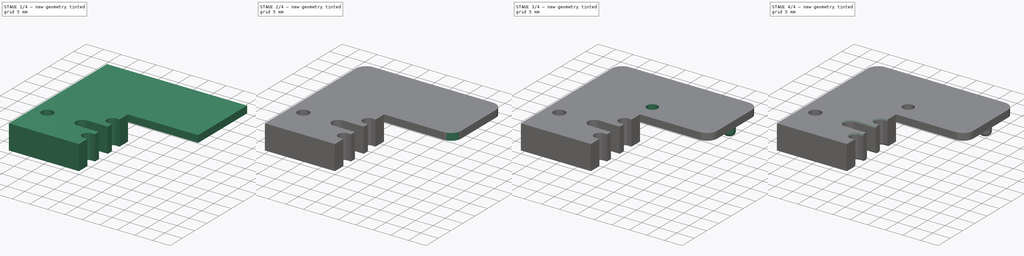
[diagram: build sequence overview — one tinted view per stage of 4, left to right]
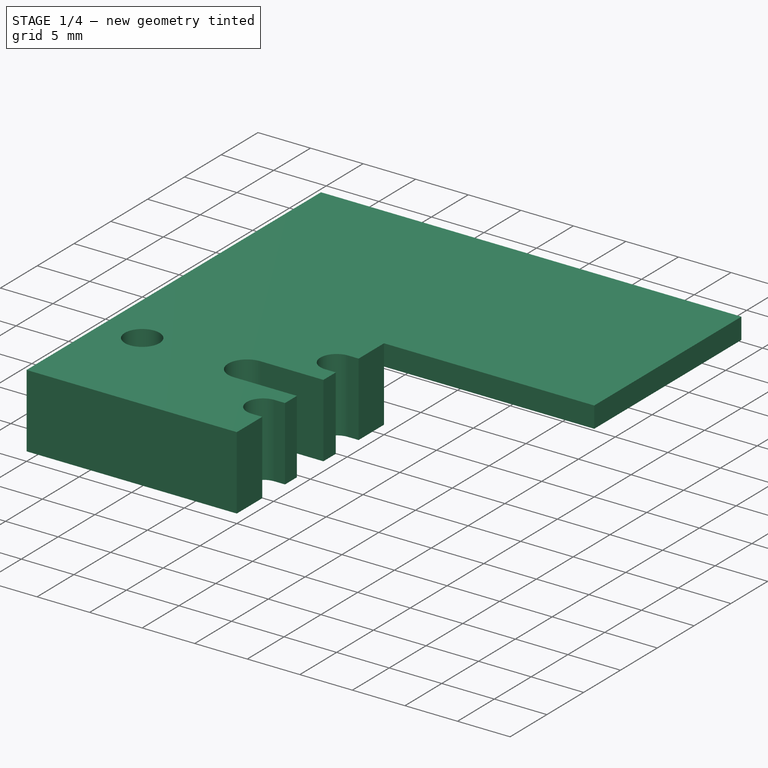
[diagram: stage 1 of 4 — iso view after this stage's code; geometry added in this stage tinted green]
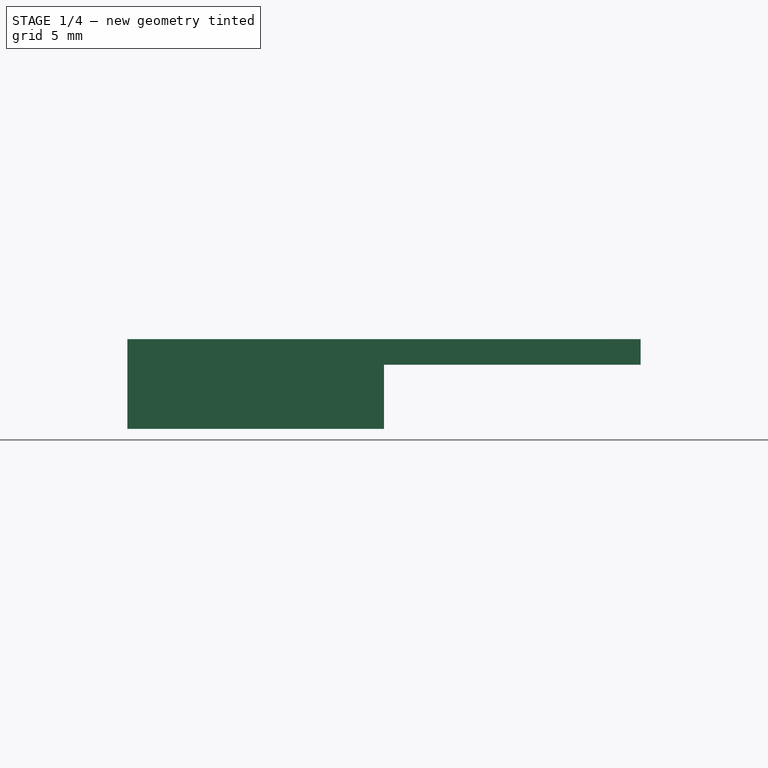
[diagram: stage 1 of 4 — front view after this stage's code; geometry added in this stage tinted green]
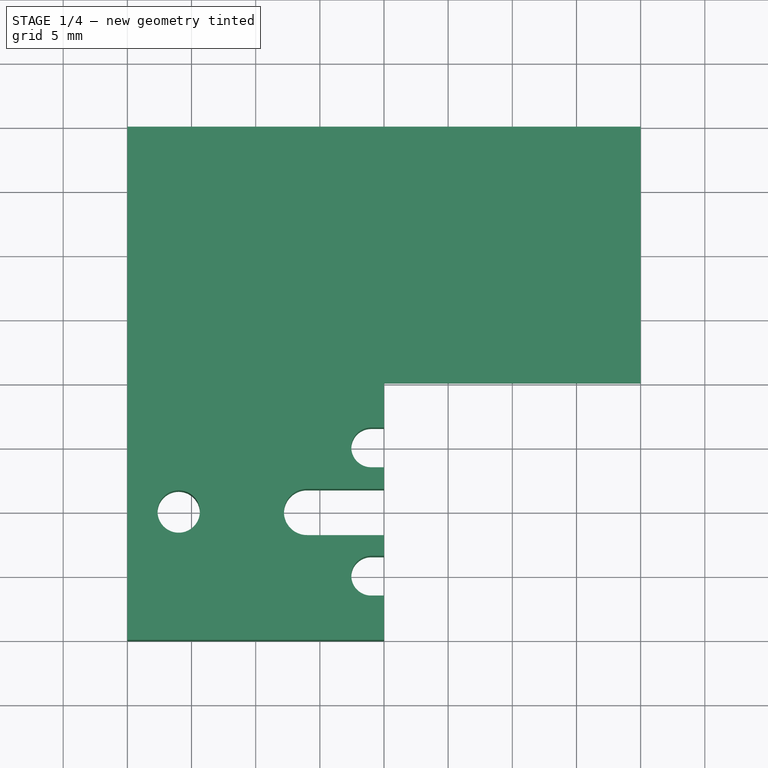
[diagram: stage 1 of 4 — top view after this stage's code; geometry added in this stage tinted green]
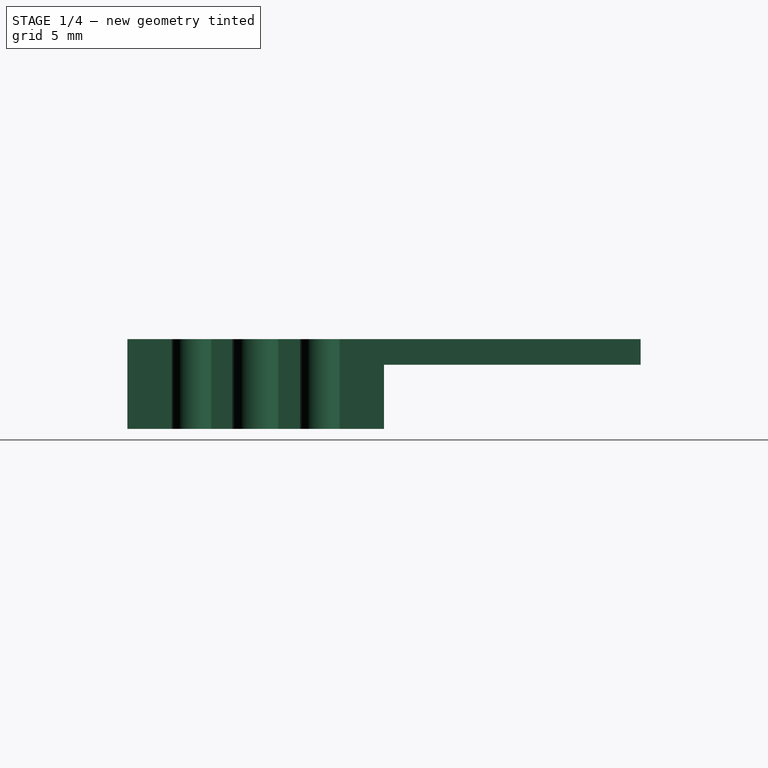
[diagram: stage 1 of 4 — right view after this stage's code; geometry added in this stage tinted green]
FCSTD DOCUMENT  (FreeCAD 0.16R6700 (Git))
Label: SlideSocket
License: All rights reserved
LicenseURL: http://en.wikipedia.org/wiki/All_rights_reserved
objects: PartDesign::Fillet×5, Sketcher::SketchObject×4, PartDesign::Pad×3, PartDesign::Pocket×1
note: 17 computed .brp shape members not serialized (recipe doc carries the construction recipe); baked Part::Feature solids carry a one-line shape summary decoded from their .brp

FEATURE [Sketcher::SketchObject] Sketch
  sketch-geometry (17):
    g0: LineSegment StartX=0 StartY=0 StartZ=0 EndX=20 EndY=0 EndZ=0
    g1: LineSegment StartX=20 StartY=0 StartZ=0 EndX=20 EndY=3.45 EndZ=0
    g2: LineSegment StartX=20 StartY=20 StartZ=0 EndX=0 EndY=20 EndZ=0
    g3: LineSegment StartX=0 StartY=20 StartZ=0 EndX=0 EndY=0 EndZ=0
    g4: Circle CenterX=4 CenterY=10 CenterZ=0 NormalX=0 NormalY=0 NormalZ=1 Radius=1.65
    g5: ArcOfCircle CenterX=19 CenterY=15 CenterZ=0 NormalX=0 NormalY=0 NormalZ=1 Radius=1.55 StartAngle=1.5708 EndAngle=4.71239
    g6: ArcOfCircle CenterX=19 CenterY=5 CenterZ=0 NormalX=0 NormalY=0 NormalZ=1 Radius=1.55 StartAngle=1.57081 EndAngle=4.71238
    g7: ArcOfCircle CenterX=14 CenterY=9.96448 CenterZ=0 NormalX=0 NormalY=0 NormalZ=1 Radius=1.8 StartAngle=1.5708 EndAngle=4.71239
    g8: LineSegment StartX=19 StartY=16.55 StartZ=0 EndX=20 EndY=16.55 EndZ=0
    g9: LineSegment StartX=19 StartY=13.45 StartZ=0 EndX=20 EndY=13.45 EndZ=0
    g10: LineSegment StartX=14 StartY=11.7645 StartZ=0 EndX=20 EndY=11.7645 EndZ=0
    g11: LineSegment StartX=14 StartY=8.16449 StartZ=0 EndX=20 EndY=8.16449 EndZ=0
    g12: LineSegment StartX=19 StartY=6.55 StartZ=0 EndX=20 EndY=6.55 EndZ=0
    g13: LineSegment StartX=19 StartY=3.45 StartZ=0 EndX=20 EndY=3.45 EndZ=0
    g14: LineSegment StartX=20 StartY=16.55 StartZ=0 EndX=20 EndY=20 EndZ=0
    g15: LineSegment StartX=20 StartY=11.7645 StartZ=0 EndX=20 EndY=13.45 EndZ=0
    g16: LineSegment StartX=20 StartY=6.55 StartZ=0 EndX=20 EndY=8.16449 EndZ=0
  constraints (44):
    c: Coincident(g0,g1)
    c: Coincident(g14,g2)
    c: Coincident(g2,g3)
    c: Coincident(g3,g0)
    c: Horizontal(g0)
    c: Horizontal(g2)
    c: Vertical(g1)
    c: Vertical(g3)
    c: Coincident(g0,g-1)
    c: DistanceX(g-1,g4) = 4
    c: Radius(g4) = 1.65
    c: DistanceY(g6,g5) = 10
    c: DistanceY(g-1,g6) = 5
    c: DistanceX(g-1,g5) = 19
    c: DistanceX(g-1,g6) = 19
    c: DistanceX(g-1,g7) = 14
    c: Radius(g7) = 1.8
    c: Horizontal(g8)
    c: Horizontal(g9)
    c: Horizontal(g10)
    c: Horizontal(g11)
    c: Horizontal(g12)
    c: Horizontal(g13)
    c: Coincident(g5,g8)
    c: Coincident(g5,g9)
    c: Coincident(g15,g9)
    c: Coincident(g14,g8)
    c: Tangent(g1,g14)
    c: Tangent(g1,g15)
    c: Coincident(g10,g15)
    c: Coincident(g7,g10)
    c: Coincident(g7,g11)
    c: Coincident(g11,g16)
    c: Coincident(g1,g13)
    c: Coincident(g16,g12)
    c: Tangent(g1,g16)
    c: Coincident(g6,g12)
    c: Coincident(g6,g13)
    c: Equal(g5,g6)
    c: Radius(g5) = 1.55
    c: DistanceY(g9,g5) = 1.55
    c: DistanceY(g5,g8) = 1.55
    c: DistanceY(g1,g6) = 1.55
    c: DistanceY(g6,g12) = 1.55
FEATURE [PartDesign::Pad] Pad
  Length = 7
  Length2 = 100
  Sketch = -> Sketch
  Type = 0
FEATURE [Sketcher::SketchObject] Sketch001
  Placement = pos=(0,20,0) rot=(0,0.707107,0.707107;3.14159rad)
  Support = -> Pad [Face3]
  sketch-geometry (4):
    g0: LineSegment StartX=-40 StartY=7 StartZ=0 EndX=0 EndY=7 EndZ=0
    g1: LineSegment StartX=0 StartY=7 StartZ=0 EndX=0 EndY=5 EndZ=0
    g2: LineSegment StartX=0 StartY=5 StartZ=0 EndX=-40 EndY=5 EndZ=0
    g3: LineSegment StartX=-40 StartY=5 StartZ=0 EndX=-40 EndY=7 EndZ=0
  constraints (11):
    c: Coincident(g0,g1)
    c: Coincident(g1,g2)
    c: Coincident(g2,g3)
    c: Coincident(g3,g0)
    c: Horizontal(g0)
    c: Horizontal(g2)
    c: Vertical(g1)
    c: Vertical(g3)
    c: DistanceY(g-1,g1) = 5
    c: DistanceY(g-1,g0) = 7
    c: DistanceX(g2,g-1) = 40
FEATURE [PartDesign::Pad] Pad001
  Length = 20
  Length2 = 100
  Sketch = -> Sketch001
  Type = 0
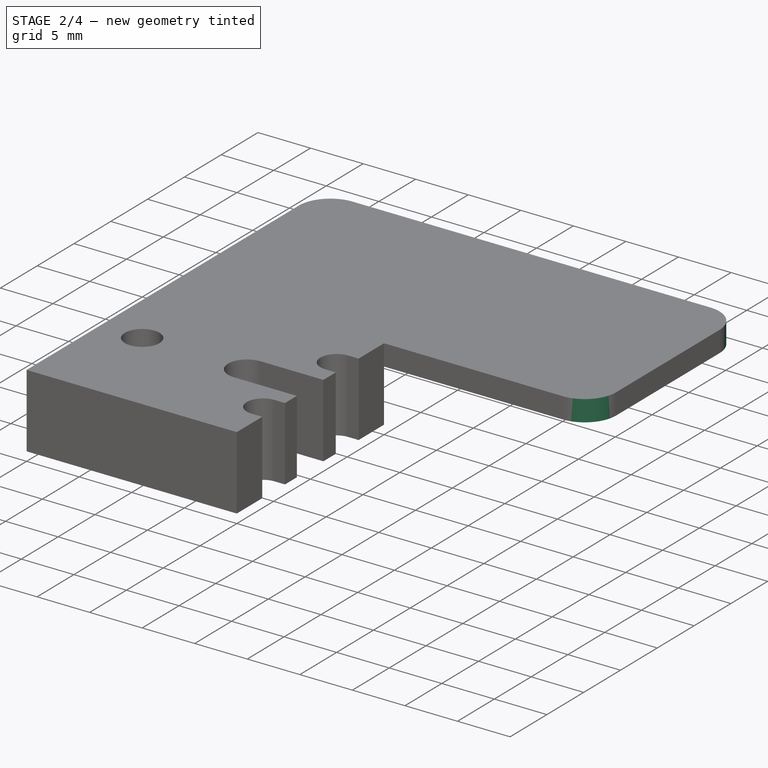
[diagram: stage 2 of 4 — iso view after this stage's code; geometry added in this stage tinted green]
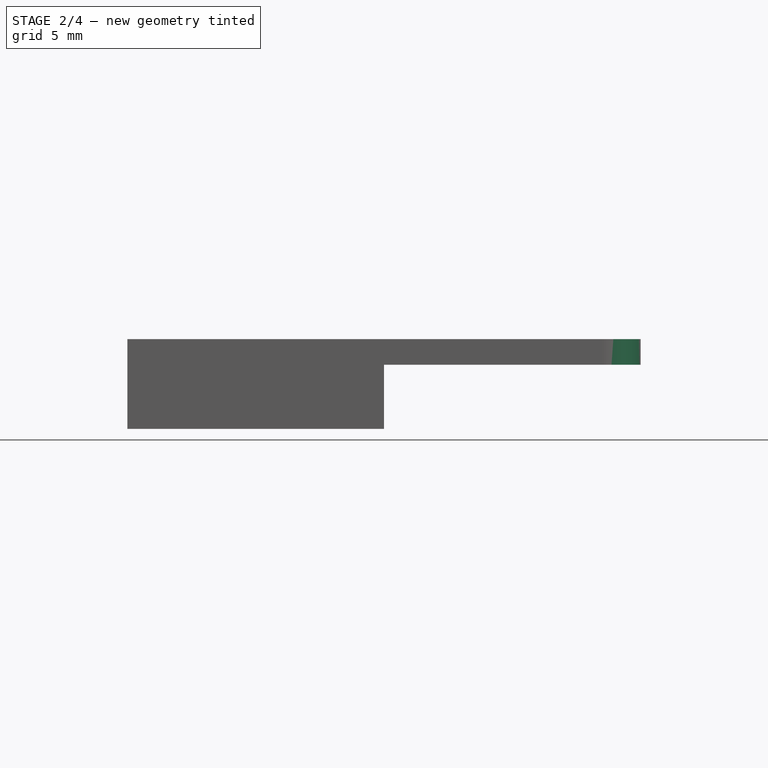
[diagram: stage 2 of 4 — front view after this stage's code; geometry added in this stage tinted green]
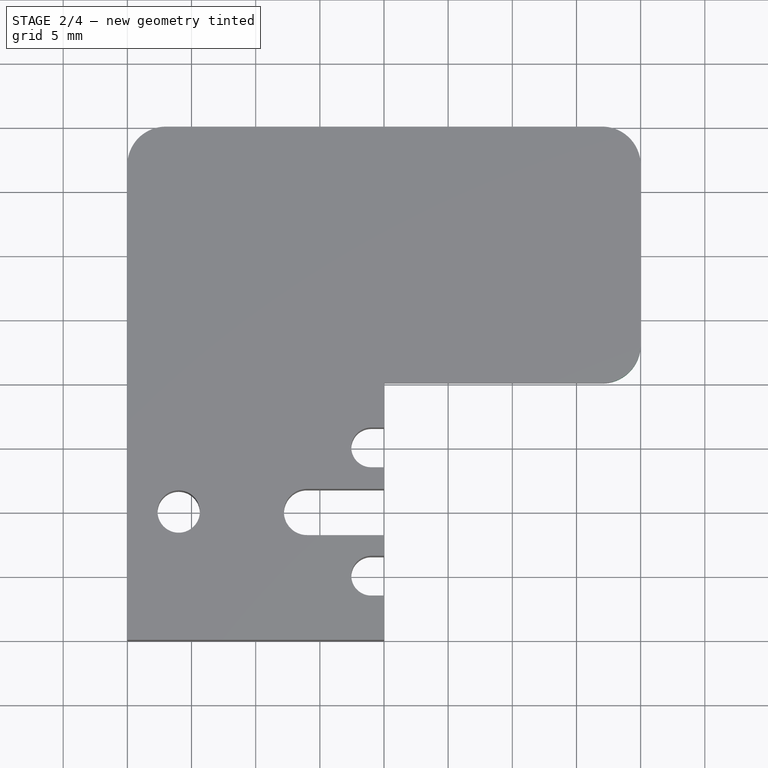
[diagram: stage 2 of 4 — top view after this stage's code; geometry added in this stage tinted green]
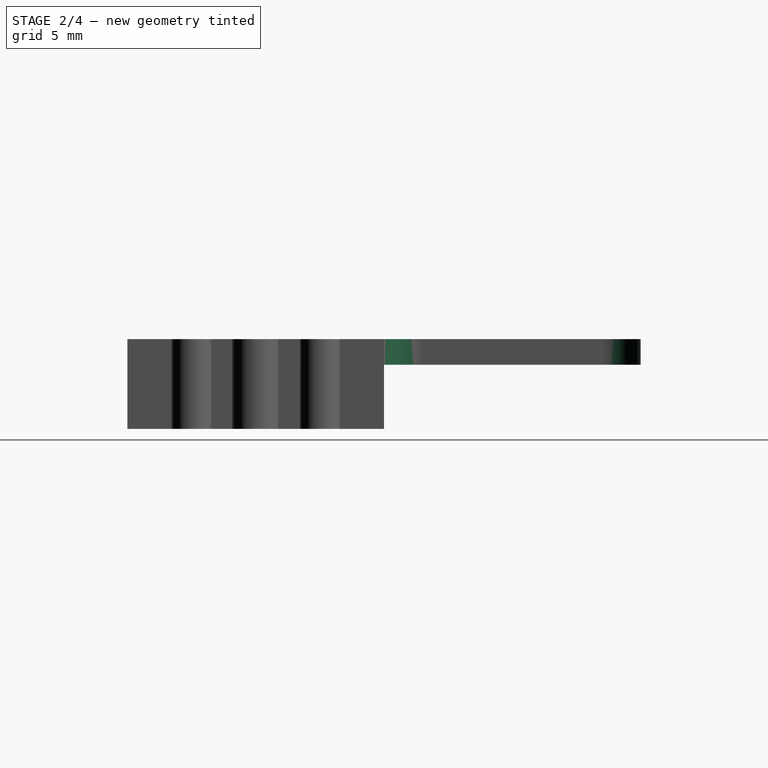
[diagram: stage 2 of 4 — right view after this stage's code; geometry added in this stage tinted green]
FEATURE [PartDesign::Fillet] Fillet
  Base = -> Pad001 [Edge45,Edge64,Edge65]
  Radius = 3
FEATURE [PartDesign::Fillet] Fillet001
  Base = -> Fillet [Edge61]
  Radius = 10
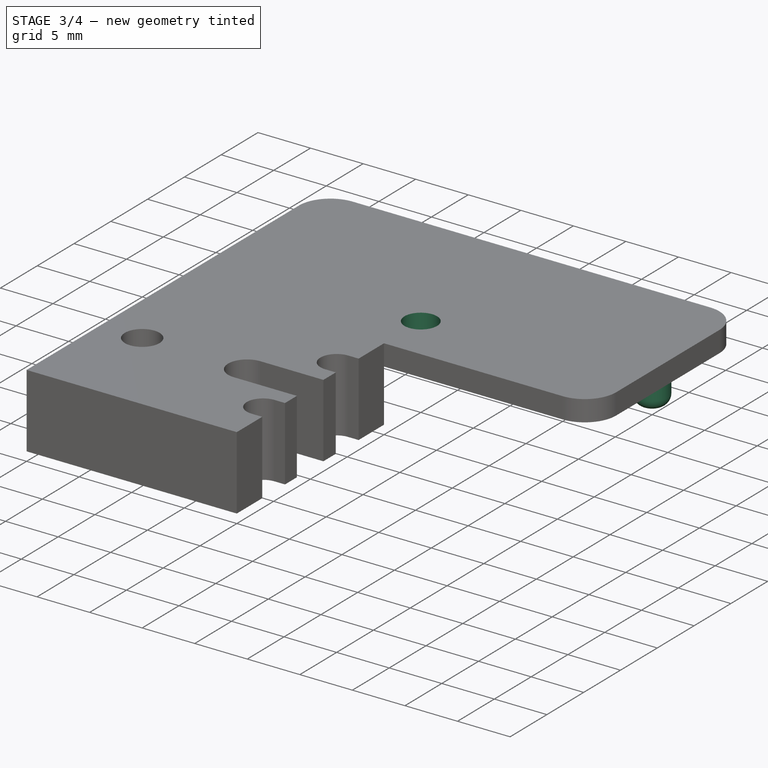
[diagram: stage 3 of 4 — iso view after this stage's code; geometry added in this stage tinted green]
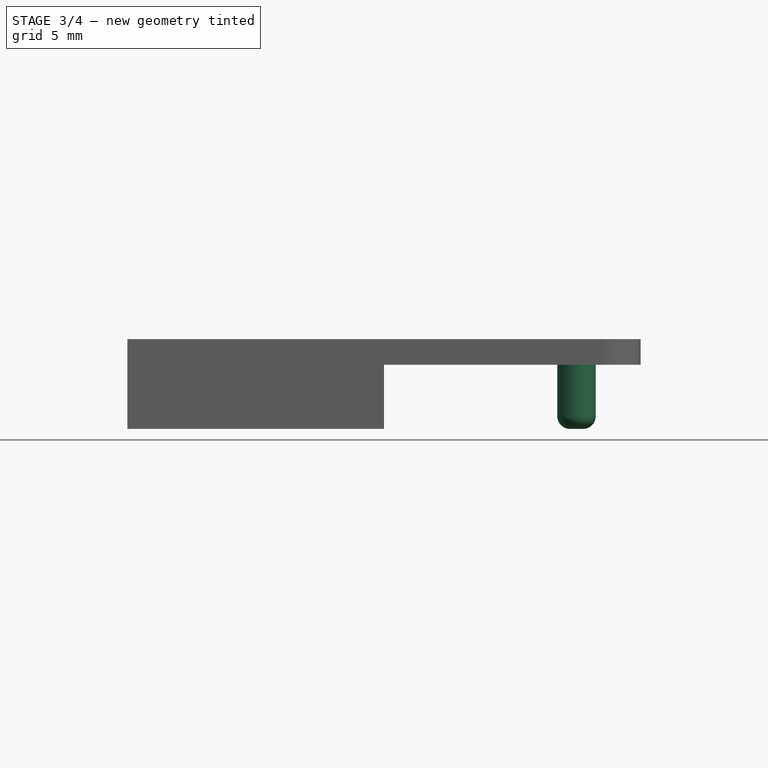
[diagram: stage 3 of 4 — front view after this stage's code; geometry added in this stage tinted green]
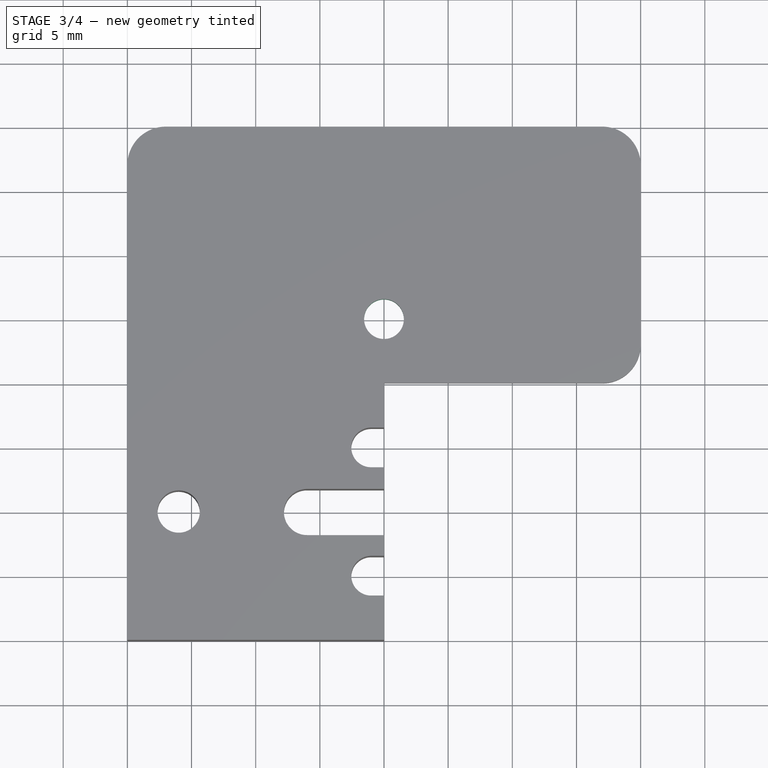
[diagram: stage 3 of 4 — top view after this stage's code; geometry added in this stage tinted green]
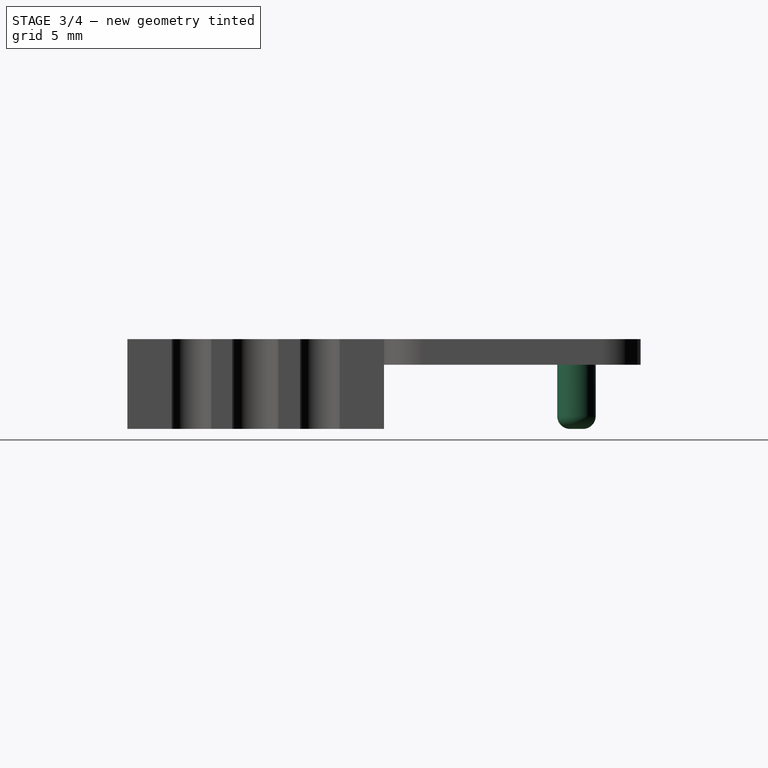
[diagram: stage 3 of 4 — right view after this stage's code; geometry added in this stage tinted green]
FEATURE [Sketcher::SketchObject] Sketch002
  Placement = pos=(0,0,7) rot=(0,0,1;0rad)
  Support = -> Fillet001 [Face14]
  sketch-geometry (1):
    g0: Circle CenterX=20 CenterY=25 CenterZ=0 NormalX=0 NormalY=0 NormalZ=1 Radius=1.55
  constraints (3):
    c: Radius(g0) = 1.55
    c: DistanceX(g-1,g0) = 20
    c: DistanceY(g-1,g0) = 25
FEATURE [PartDesign::Pocket] Pocket
  Length = 5
  Sketch = -> Sketch002
  Type = 0
FEATURE [Sketcher::SketchObject] Sketch003
  Placement = pos=(0,0,5) rot=(1,0,0;3.14159rad)
  Support = -> Pocket [Face1]
  sketch-geometry (1):
    g0: Circle CenterX=35 CenterY=-35 CenterZ=0 NormalX=0 NormalY=0 NormalZ=1 Radius=1.5
  constraints (3):
    c: Radius(g0) = 1.5
    c: DistanceY(g0,g-1) = 35
    c: DistanceX(g-1,g0) = 35
FEATURE [PartDesign::Pad] Pad002
  Length = 5
  Length2 = 100
  Sketch = -> Sketch003
  Type = 0
FEATURE [PartDesign::Fillet] Fillet002
  Base = -> Pad002 [Edge82]
  Radius = 1
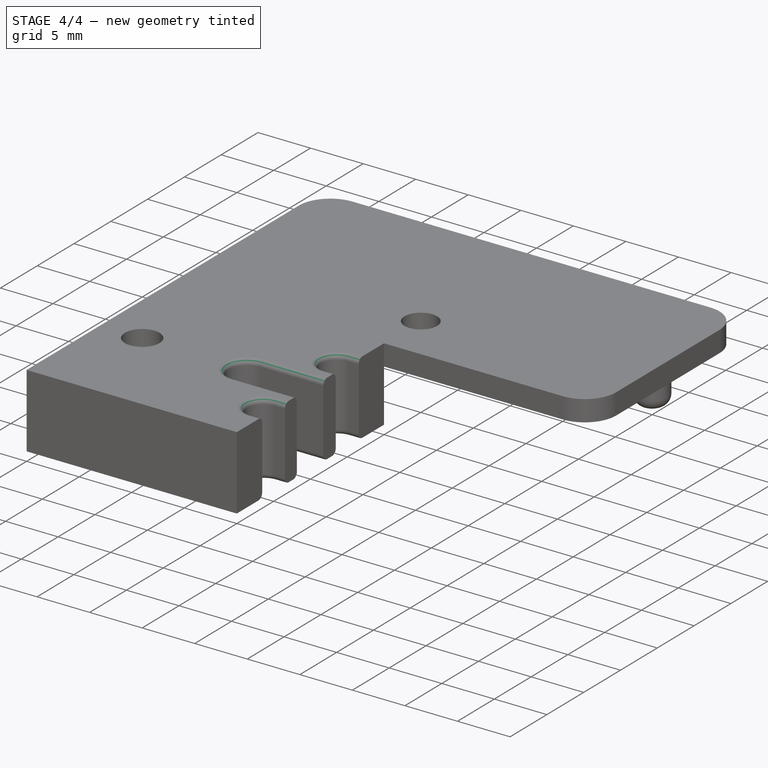
[diagram: stage 4 of 4 — iso view after this stage's code; geometry added in this stage tinted green]
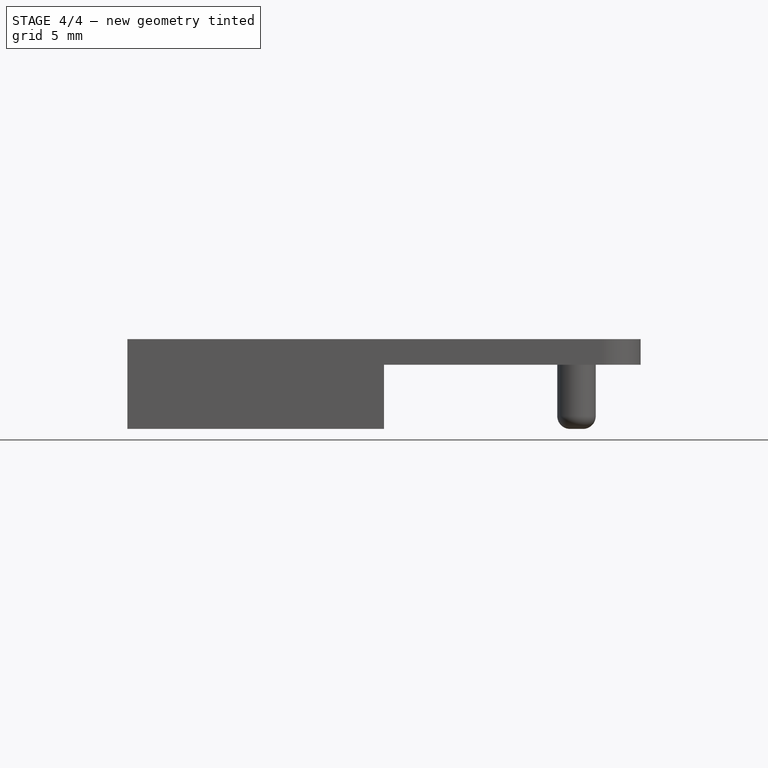
[diagram: stage 4 of 4 — front view after this stage's code; geometry added in this stage tinted green]
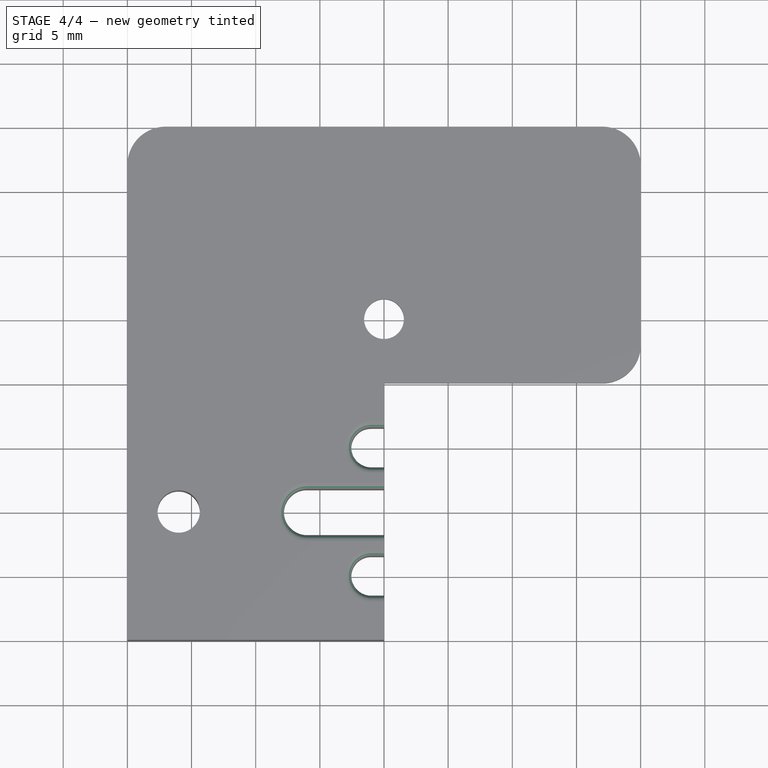
[diagram: stage 4 of 4 — top view after this stage's code; geometry added in this stage tinted green]
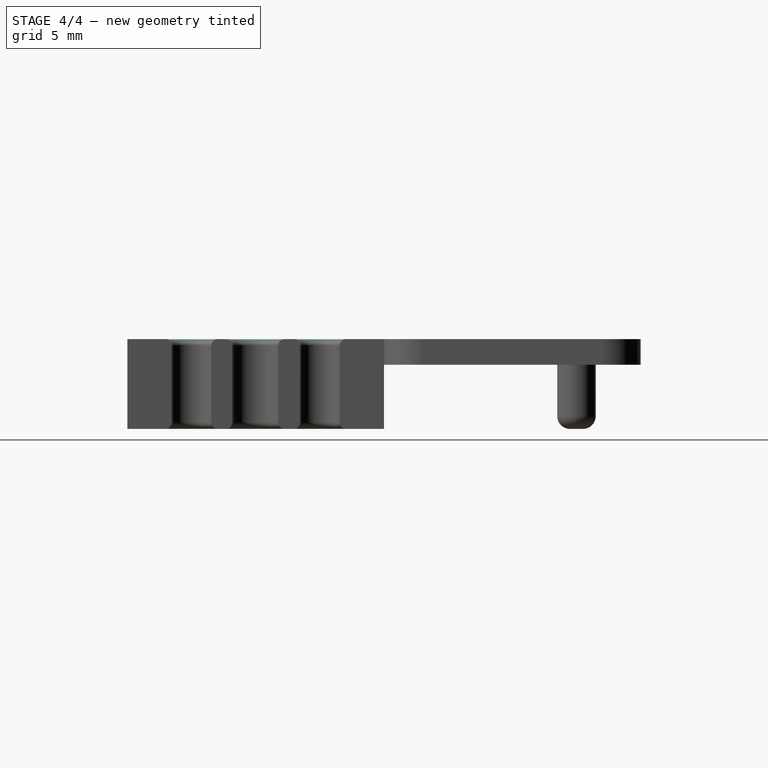
[diagram: stage 4 of 4 — right view after this stage's code; geometry added in this stage tinted green]
FEATURE [PartDesign::Fillet] Fillet003
  Base = -> Fillet002 [Edge56]
  Radius = 1
FEATURE [PartDesign::Fillet] Fillet004
  Base = -> Fillet003 [Edge13,Edge11,Edge15,Edge18,Edge16,Edge14,Edge10,Edge8,Edge6,Edge34,Edge38,Edge42,Edge50,Edge54,Edge57,Edge52,Edge48,Edge44]
  Radius = 0.5
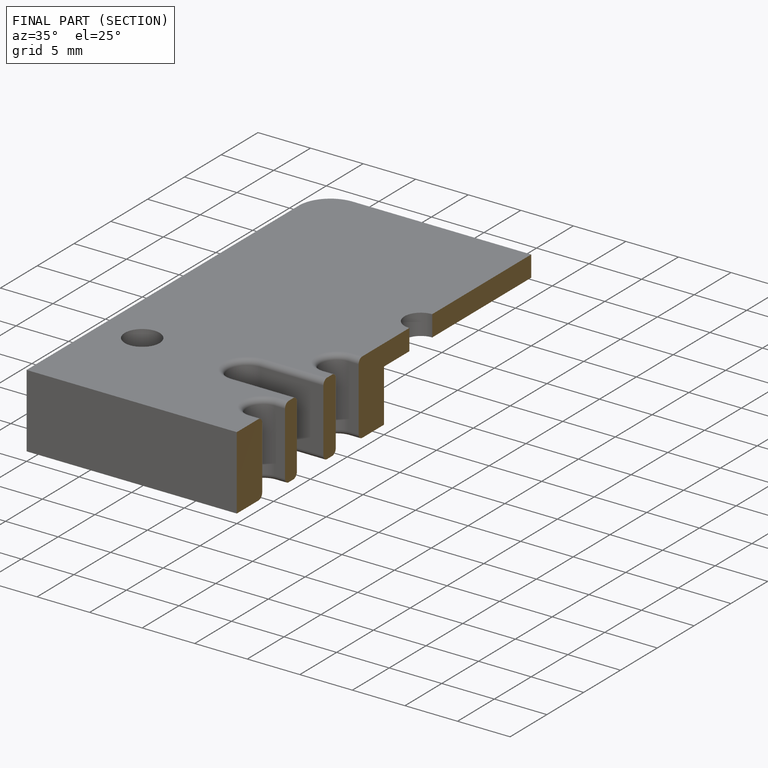
[diagram: finished part — half-section view (interior)]
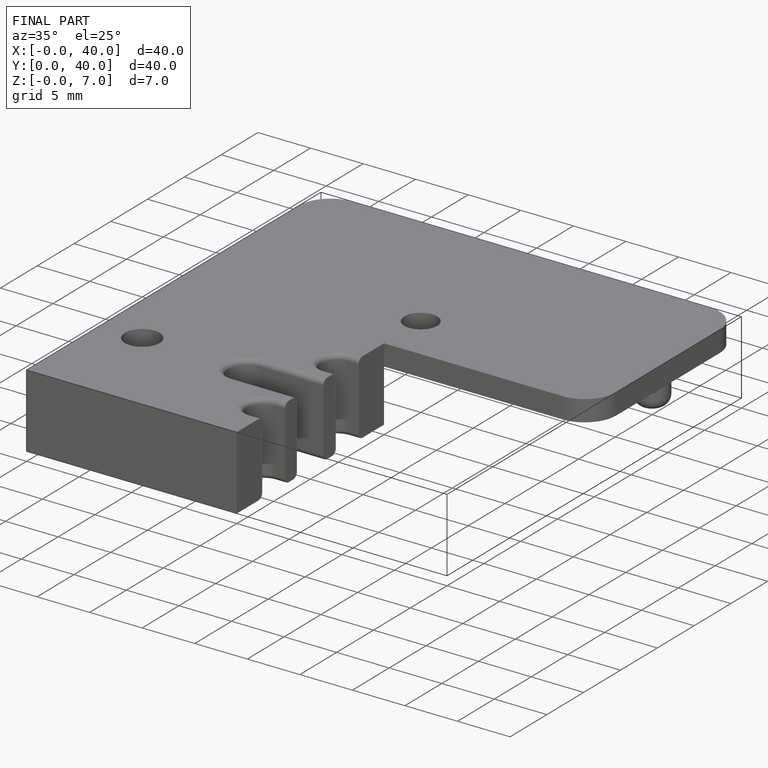
[diagram: finished part — iso view with bounding-box wireframe]
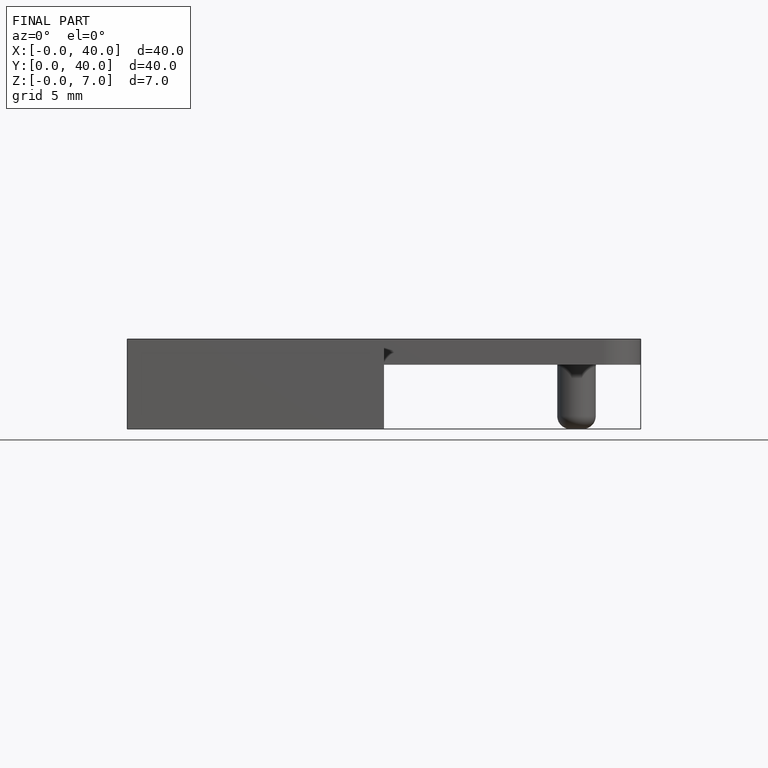
[diagram: finished part — front view with bounding-box wireframe]
